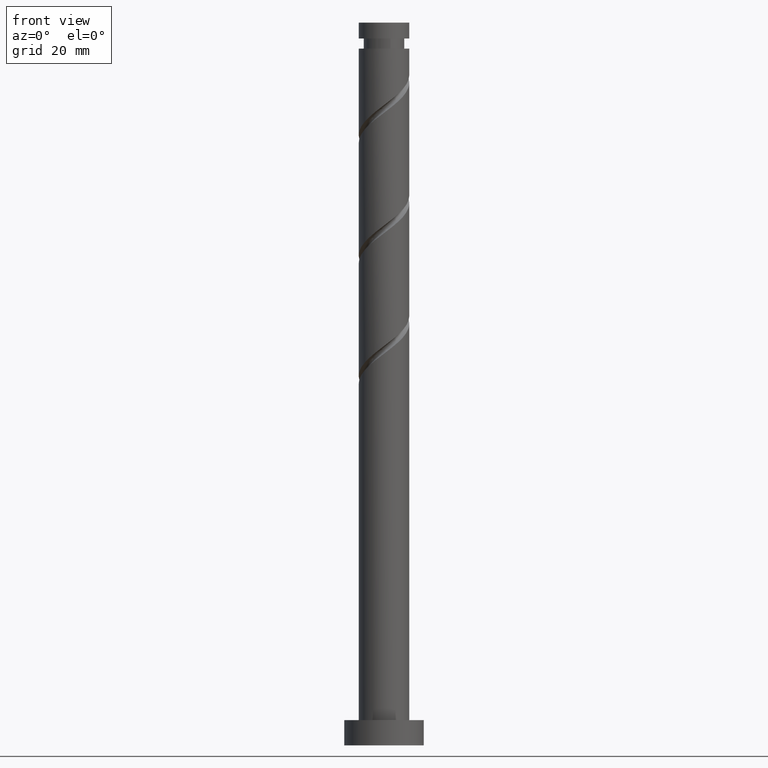
[diagram: clean part render]
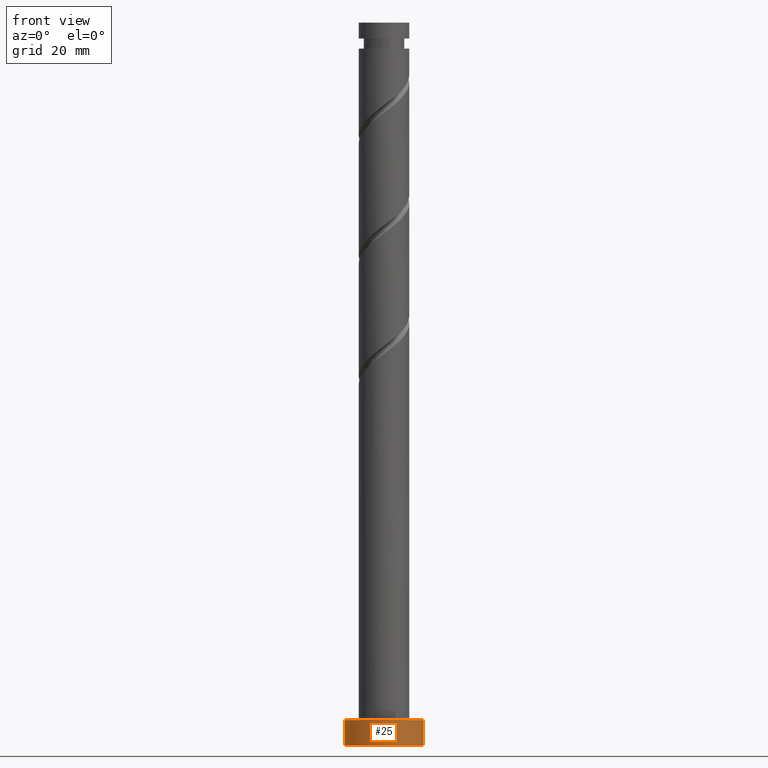
[diagram: same view with one face highlighted and labeled with its STEP entity id]
A machine part, front view. The second image highlights one B-rep face of the part: STEP entity #25.
In plain terms, the highlighted cylindrical surface (partial cylindrical patch) has radius 11 mm, axis along (-0, -0, -1).
Its self-contained STEP definition (entity closure, byte-faithful):
#15 = ORIENTED_EDGE ( 'NONE', *, *, #934, .F. ) ;
#25 = ADVANCED_FACE ( 'NONE', ( #51 ), #1559, .T. ) ;
#34 = DIRECTION ( 'NONE',  ( -0.000000000000000000, -0.000000000000000000, -1.000000000000000000 ) ) ;
#45 = ORIENTED_EDGE ( 'NONE', *, *, #330, .T. ) ;
#51 = FACE_OUTER_BOUND ( 'NONE', #1096, .T. ) ;
#80 = CARTESIAN_POINT ( 'NONE',  ( 0.000000000000000000, 0.000000000000000000, 7.000000000000000000 ) ) ;
#84 = ORIENTED_EDGE ( 'NONE', *, *, #1523, .T. ) ;
#164 = AXIS2_PLACEMENT_3D ( 'NONE', #735, #1554, #742 ) ;
#214 = AXIS2_PLACEMENT_3D ( 'NONE', #80, #652, #1729 ) ;
#267 = CARTESIAN_POINT ( 'NONE',  ( -11.00000000000000000, 0.000000000000000000, 7.000000000000000000 ) ) ;
#287 = CARTESIAN_POINT ( 'NONE',  ( 11.00000000000000000, 1.347111479062088405E-15, 0.000000000000000000 ) ) ;
#330 = EDGE_CURVE ( 'NONE', #841, #1528, #806, .T. ) ;
#408 = VECTOR ( 'NONE', #34, 1000.000000000000000 ) ;
#482 = DIRECTION ( 'NONE',  ( -0.000000000000000000, -0.000000000000000000, -1.000000000000000000 ) ) ;
#582 = ORIENTED_EDGE ( 'NONE', *, *, #623, .F. ) ;
#590 = AXIS2_PLACEMENT_3D ( 'NONE', #594, #1132, #1407 ) ;
#594 = CARTESIAN_POINT ( 'NONE',  ( 0.000000000000000000, 0.000000000000000000, 0.000000000000000000 ) ) ;
#623 = EDGE_CURVE ( 'NONE', #841, #1035, #1285, .T. ) ;
#640 = VECTOR ( 'NONE', #482, 1000.000000000000000 ) ;
#652 = DIRECTION ( 'NONE',  ( 0.000000000000000000, 0.000000000000000000, 1.000000000000000000 ) ) ;
#662 = CARTESIAN_POINT ( 'NONE',  ( 11.00000000000000000, 1.347111479062088405E-15, 7.000000000000000000 ) ) ;
#735 = CARTESIAN_POINT ( 'NONE',  ( 0.000000000000000000, 0.000000000000000000, 7.000000000000000000 ) ) ;
#742 = DIRECTION ( 'NONE',  ( -1.000000000000000000, 0.000000000000000000, 0.000000000000000000 ) ) ;
#806 = LINE ( 'NONE', #1213, #408 ) ;
#841 = VERTEX_POINT ( 'NONE', #267 ) ;
#934 = EDGE_CURVE ( 'NONE', #1035, #1150, #1575, .T. ) ;
#1035 = VERTEX_POINT ( 'NONE', #662 ) ;
#1096 = EDGE_LOOP ( 'NONE', ( #15, #582, #45, #84 ) ) ;
#1132 = DIRECTION ( 'NONE',  ( 0.000000000000000000, 0.000000000000000000, 1.000000000000000000 ) ) ;
#1150 = VERTEX_POINT ( 'NONE', #287 ) ;
#1178 = CARTESIAN_POINT ( 'NONE',  ( 11.00000000000000000, 1.347111479062088405E-15, 7.000000000000000000 ) ) ;
#1213 = CARTESIAN_POINT ( 'NONE',  ( -11.00000000000000000, 0.000000000000000000, 7.000000000000000000 ) ) ;
#1266 = CIRCLE ( 'NONE', #590, 11.00000000000000000 ) ;
#1285 = CIRCLE ( 'NONE', #214, 11.00000000000000000 ) ;
#1407 = DIRECTION ( 'NONE',  ( 1.000000000000000000, 0.000000000000000000, 0.000000000000000000 ) ) ;
#1521 = CARTESIAN_POINT ( 'NONE',  ( -11.00000000000000000, 0.000000000000000000, 0.000000000000000000 ) ) ;
#1523 = EDGE_CURVE ( 'NONE', #1528, #1150, #1266, .T. ) ;
#1528 = VERTEX_POINT ( 'NONE', #1521 ) ;
#1554 = DIRECTION ( 'NONE',  ( -0.000000000000000000, -0.000000000000000000, -1.000000000000000000 ) ) ;
#1559 = CYLINDRICAL_SURFACE ( 'NONE', #164, 11.00000000000000000 ) ;
#1575 = LINE ( 'NONE', #1178, #640 ) ;
#1729 = DIRECTION ( 'NONE',  ( 1.000000000000000000, 0.000000000000000000, 0.000000000000000000 ) ) ;